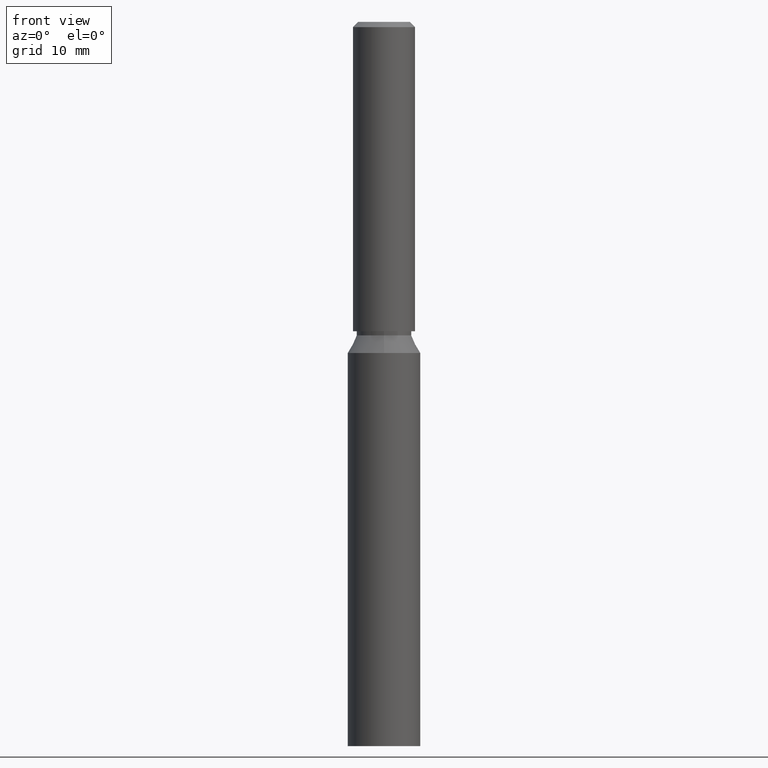
[diagram: clean part render]
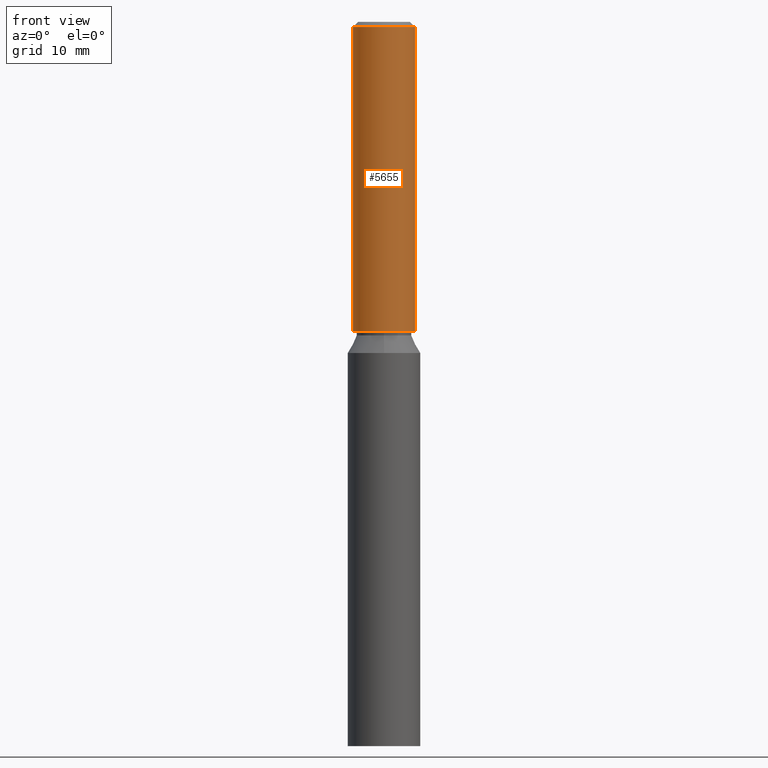
[diagram: same view with one face highlighted and labeled with its STEP entity id]
A machine part, front view. The second image highlights one B-rep face of the part: STEP entity #5655.
In plain terms, the highlighted cylindrical surface (edge-blend (fillet) strip) has radius 3 mm, axis along (-0, -0, -1).
Its self-contained STEP definition (entity closure, byte-faithful):
#242 = CARTESIAN_POINT ( 'NONE',  ( 0.0000000000000000000, 0.0000000000000000000, 40.10000000000000100 ) ) ;
#447 = CARTESIAN_POINT ( 'NONE',  ( 0.0000000000000000000, 0.0000000000000000000, 70.00000000000000000 ) ) ;
#1198 = CARTESIAN_POINT ( 'NONE',  ( -3.000000000000000400, 0.0000000000000000000, 69.49999999999998600 ) ) ;
#1473 = DIRECTION ( 'NONE',  ( -0.0000000000000000000, -0.0000000000000000000, -1.000000000000000000 ) ) ;
#1476 = DIRECTION ( 'NONE',  ( 1.000000000000000000, 0.0000000000000000000, 0.0000000000000000000 ) ) ;
#1537 = VERTEX_POINT ( 'NONE', #1198 ) ;
#1686 = CARTESIAN_POINT ( 'NONE',  ( 3.000000000000000400, 3.673940397442060400E-016, 69.49999999999998600 ) ) ;
#1696 = ORIENTED_EDGE ( 'NONE', *, *, #9752, .T. ) ;
#1907 = CARTESIAN_POINT ( 'NONE',  ( 3.000000000000000400, 3.673940397442060400E-016, 40.10000000000000100 ) ) ;
#1916 = VERTEX_POINT ( 'NONE', #1686 ) ;
#4000 = EDGE_CURVE ( 'NONE', #6557, #12953, #6052, .T. ) ;
#4179 = ORIENTED_EDGE ( 'NONE', *, *, #4000, .F. ) ;
#4793 = LINE ( 'NONE', #12699, #12958 ) ;
#5059 = EDGE_CURVE ( 'NONE', #1537, #12953, #11077, .T. ) ;
#5140 = EDGE_CURVE ( 'NONE', #1916, #6557, #4793, .T. ) ;
#5346 = AXIS2_PLACEMENT_3D ( 'NONE', #6535, #10566, #1476 ) ;
#5655 = ADVANCED_FACE ( 'NONE', ( #9840 ), #9518, .T. ) ;
#5837 = ORIENTED_EDGE ( 'NONE', *, *, #5059, .T. ) ;
#6052 = CIRCLE ( 'NONE', #11994, 3.000000000000000400 ) ;
#6118 = DIRECTION ( 'NONE',  ( -0.0000000000000000000, 1.967742040464204400E-018, -1.000000000000000000 ) ) ;
#6401 = CARTESIAN_POINT ( 'NONE',  ( -3.000000000000000400, 0.0000000000000000000, 70.00000000000000000 ) ) ;
#6535 = CARTESIAN_POINT ( 'NONE',  ( 0.0000000000000000000, 0.0000000000000000000, 69.49999999999998600 ) ) ;
#6557 = VERTEX_POINT ( 'NONE', #1907 ) ;
#6661 = DIRECTION ( 'NONE',  ( -0.0000000000000000000, -0.0000000000000000000, -1.000000000000000000 ) ) ;
#6779 = AXIS2_PLACEMENT_3D ( 'NONE', #447, #7236, #8296 ) ;
#7236 = DIRECTION ( 'NONE',  ( -0.0000000000000000000, -0.0000000000000000000, -1.000000000000000000 ) ) ;
#8265 = DIRECTION ( 'NONE',  ( 0.0000000000000000000, 1.000000000000000000, 0.0000000000000000000 ) ) ;
#8296 = DIRECTION ( 'NONE',  ( -1.000000000000000000, 0.0000000000000000000, 0.0000000000000000000 ) ) ;
#9518 = CYLINDRICAL_SURFACE ( 'NONE', #6779, 3.000000000000000400 ) ;
#9752 = EDGE_CURVE ( 'NONE', #1916, #1537, #9781, .T. ) ;
#9781 = CIRCLE ( 'NONE', #5346, 3.000000000000000400 ) ;
#9840 = FACE_OUTER_BOUND ( 'NONE', #12723, .T. ) ;
#10554 = ORIENTED_EDGE ( 'NONE', *, *, #5140, .F. ) ;
#10566 = DIRECTION ( 'NONE',  ( 0.0000000000000000000, 0.0000000000000000000, -1.000000000000000000 ) ) ;
#10629 = VECTOR ( 'NONE', #1473, 1000.000000000000000 ) ;
#11077 = LINE ( 'NONE', #6401, #10629 ) ;
#11994 = AXIS2_PLACEMENT_3D ( 'NONE', #242, #6118, #8265 ) ;
#12097 = CARTESIAN_POINT ( 'NONE',  ( -3.000000000000000400, 0.0000000000000000000, 40.10000000000000100 ) ) ;
#12699 = CARTESIAN_POINT ( 'NONE',  ( 3.000000000000000400, 3.673940397442060400E-016, 70.00000000000000000 ) ) ;
#12723 = EDGE_LOOP ( 'NONE', ( #10554, #1696, #5837, #4179 ) ) ;
#12953 = VERTEX_POINT ( 'NONE', #12097 ) ;
#12958 = VECTOR ( 'NONE', #6661, 1000.000000000000000 ) ;